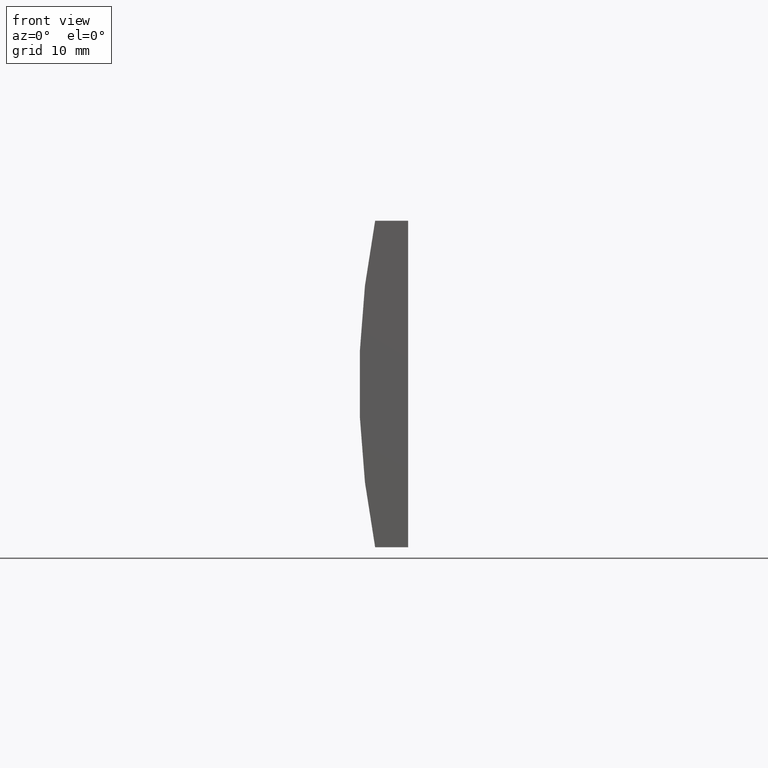
[diagram: clean part render]
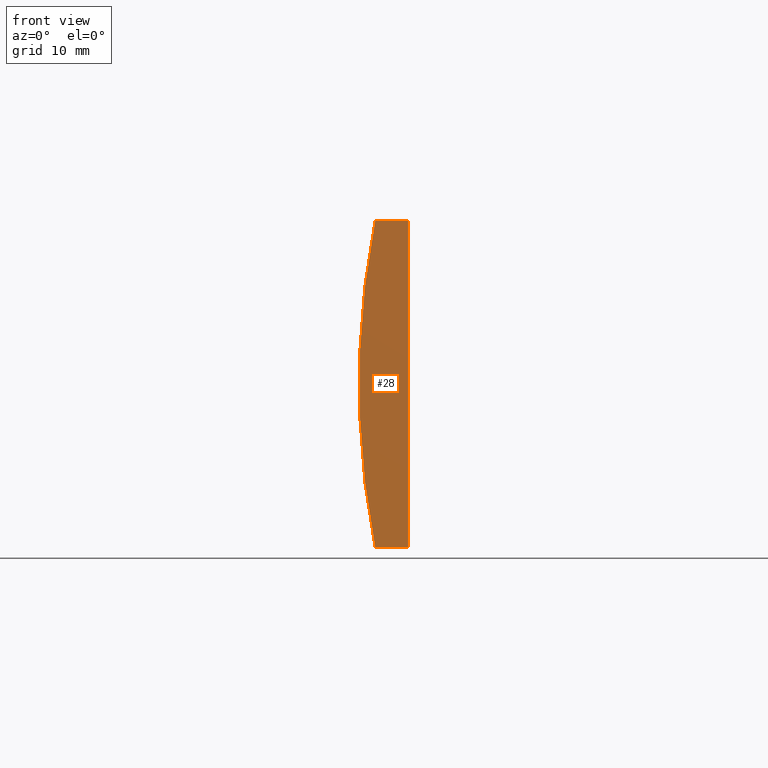
[diagram: same view with one face highlighted and labeled with its STEP entity id]
A machine part, front view. The second image highlights one B-rep face of the part: STEP entity #28.
In plain terms, the highlighted planar face has unit normal (0, 1, 0).
Its self-contained STEP definition (entity closure, byte-faithful):
#3 = VERTEX_POINT ( 'NONE', #197 ) ;
#4 = DIRECTION ( 'NONE',  ( 0.0000000000000000000, 0.0000000000000000000, 1.000000000000000000 ) ) ;
#5 = DIRECTION ( 'NONE',  ( -1.000000000000000000, -0.0000000000000000000, 1.142959327213734500E-015 ) ) ;
#26 = LINE ( 'NONE', #117, #146 ) ;
#28 = ADVANCED_FACE ( 'NONE', ( #93 ), #87, .F. ) ;
#31 = ORIENTED_EDGE ( 'NONE', *, *, #33, .F. ) ;
#33 = EDGE_CURVE ( 'NONE', #50, #3, #53, .T. ) ;
#34 = CARTESIAN_POINT ( 'NONE',  ( -68.69479566514874600, 0.0000000000000000000, -15.00000000000000400 ) ) ;
#36 = VECTOR ( 'NONE', #108, 1000.000000000000000 ) ;
#48 = VERTEX_POINT ( 'NONE', #154 ) ;
#50 = VERTEX_POINT ( 'NONE', #90 ) ;
#53 = LINE ( 'NONE', #199, #158 ) ;
#70 = DIRECTION ( 'NONE',  ( 0.0000000000000000000, 1.000000000000000000, 0.0000000000000000000 ) ) ;
#73 = EDGE_LOOP ( 'NONE', ( #152, #131, #123, #31 ) ) ;
#77 = EDGE_CURVE ( 'NONE', #132, #50, #185, .T. ) ;
#81 = CARTESIAN_POINT ( 'NONE',  ( -71.73029034054660300, 0.0000000000000000000, -15.00000000000000000 ) ) ;
#82 = CARTESIAN_POINT ( 'NONE',  ( 4.355204334851265500, 0.0000000000000000000, 4.286263797015675000E-017 ) ) ;
#87 = PLANE ( 'NONE',  #137 ) ;
#90 = CARTESIAN_POINT ( 'NONE',  ( -71.73029034054660300, 0.0000000000000000000, 15.00000000000000000 ) ) ;
#93 = FACE_OUTER_BOUND ( 'NONE', #73, .T. ) ;
#107 = EDGE_CURVE ( 'NONE', #3, #48, #191, .T. ) ;
#108 = DIRECTION ( 'NONE',  ( -4.625929269271485900E-016, -0.0000000000000000000, -1.000000000000000000 ) ) ;
#110 = DIRECTION ( 'NONE',  ( 0.0000000000000000000, -0.0000000000000000000, 1.000000000000000000 ) ) ;
#117 = CARTESIAN_POINT ( 'NONE',  ( -71.73029034054660300, 0.0000000000000000000, -15.00000000000000000 ) ) ;
#118 = AXIS2_PLACEMENT_3D ( 'NONE', #82, #176, #4 ) ;
#121 = EDGE_CURVE ( 'NONE', #48, #132, #26, .T. ) ;
#123 = ORIENTED_EDGE ( 'NONE', *, *, #107, .F. ) ;
#131 = ORIENTED_EDGE ( 'NONE', *, *, #121, .F. ) ;
#132 = VERTEX_POINT ( 'NONE', #81 ) ;
#133 = DIRECTION ( 'NONE',  ( 1.000000000000000000, 0.0000000000000000000, 0.0000000000000000000 ) ) ;
#137 = AXIS2_PLACEMENT_3D ( 'NONE', #179, #70, #110 ) ;
#146 = VECTOR ( 'NONE', #5, 1000.000000000000000 ) ;
#152 = ORIENTED_EDGE ( 'NONE', *, *, #77, .F. ) ;
#154 = CARTESIAN_POINT ( 'NONE',  ( -68.69479566514874600, 0.0000000000000000000, -15.00000000000000400 ) ) ;
#158 = VECTOR ( 'NONE', #133, 1000.000000000000000 ) ;
#176 = DIRECTION ( 'NONE',  ( 0.0000000000000000000, 1.000000000000000000, 0.0000000000000000000 ) ) ;
#179 = CARTESIAN_POINT ( 'NONE',  ( 4.355204334851265500, 0.0000000000000000000, 4.286263797015675000E-017 ) ) ;
#185 = CIRCLE ( 'NONE', #118, 77.54999999999998300 ) ;
#191 = LINE ( 'NONE', #34, #36 ) ;
#197 = CARTESIAN_POINT ( 'NONE',  ( -68.69479566514873200, 0.0000000000000000000, 15.00000000000000000 ) ) ;
#199 = CARTESIAN_POINT ( 'NONE',  ( -71.73029034054660300, 0.0000000000000000000, 15.00000000000000000 ) ) ;